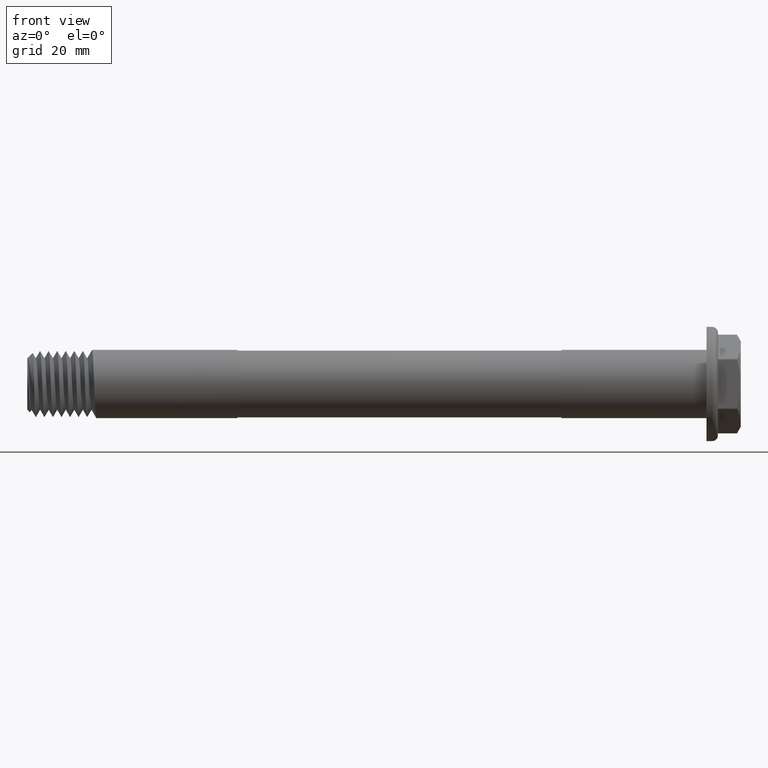
[diagram: clean part render]
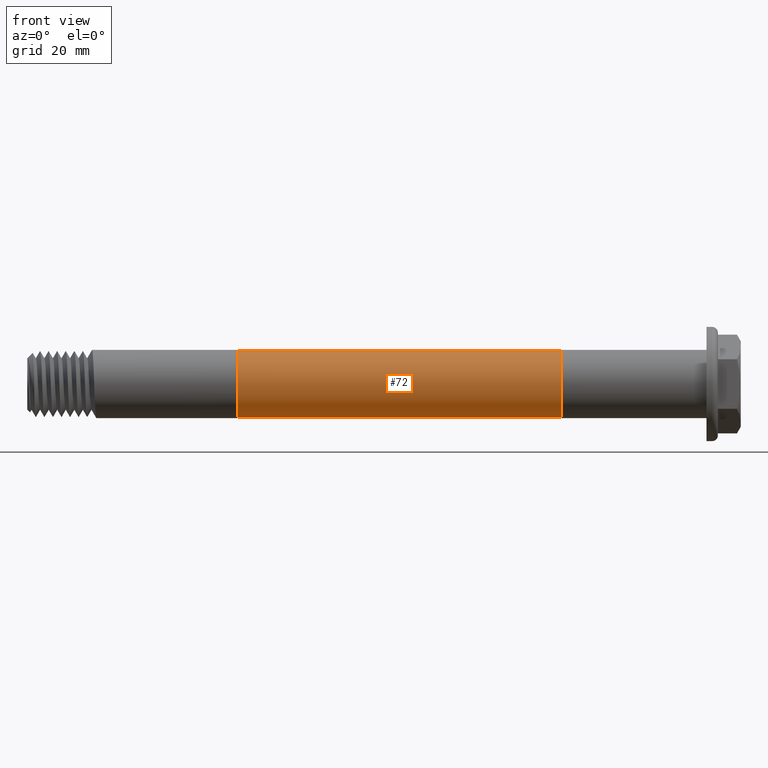
[diagram: same view with one face highlighted and labeled with its STEP entity id]
A machine part, front view. The second image highlights one B-rep face of the part: STEP entity #72.
In plain terms, the highlighted cylindrical surface (edge-blend (fillet) strip) has radius 5.842 mm, axis along (1, 0, 0).
Its self-contained STEP definition (entity closure, byte-faithful):
#72 = ADVANCED_FACE ( 'NONE', ( #163 ), #628, .T. ) ;
#75 = VECTOR ( 'NONE', #2176, 1000.000000000000000 ) ;
#160 = ORIENTED_EDGE ( 'NONE', *, *, #2307, .T. ) ;
#163 = FACE_OUTER_BOUND ( 'NONE', #357, .T. ) ;
#205 = CARTESIAN_POINT ( 'NONE',  ( -5.540562748477140300, 7.154386600618837600E-016, 5.841999999999999600 ) ) ;
#213 = DIRECTION ( 'NONE',  ( 0.0000000000000000000, 0.0000000000000000000, 1.000000000000000000 ) ) ;
#216 = ORIENTED_EDGE ( 'NONE', *, *, #500, .T. ) ;
#357 = EDGE_LOOP ( 'NONE', ( #782, #216, #939, #160 ) ) ;
#358 = DIRECTION ( 'NONE',  ( -1.000000000000000000, 0.0000000000000000000, 0.0000000000000000000 ) ) ;
#370 = CARTESIAN_POINT ( 'NONE',  ( 93.59999999999999400, 0.0000000000000000000, 0.0000000000000000000 ) ) ;
#500 = EDGE_CURVE ( 'NONE', #2080, #544, #1441, .T. ) ;
#544 = VERTEX_POINT ( 'NONE', #2092 ) ;
#554 = CARTESIAN_POINT ( 'NONE',  ( 36.82999999999999800, 7.154386600618837600E-016, 5.841999999999999600 ) ) ;
#628 = CYLINDRICAL_SURFACE ( 'NONE', #1150, 5.841999999999999600 ) ;
#629 = VERTEX_POINT ( 'NONE', #829 ) ;
#782 = ORIENTED_EDGE ( 'NONE', *, *, #1458, .F. ) ;
#816 = VERTEX_POINT ( 'NONE', #1553 ) ;
#829 = CARTESIAN_POINT ( 'NONE',  ( 93.59999999999999400, 0.0000000000000000000, -5.841999999999999600 ) ) ;
#873 = CARTESIAN_POINT ( 'NONE',  ( -5.540562748477140300, 0.0000000000000000000, 0.0000000000000000000 ) ) ;
#896 = EDGE_CURVE ( 'NONE', #544, #629, #1243, .T. ) ;
#939 = ORIENTED_EDGE ( 'NONE', *, *, #896, .T. ) ;
#1150 = AXIS2_PLACEMENT_3D ( 'NONE', #873, #1431, #1799 ) ;
#1155 = DIRECTION ( 'NONE',  ( 1.000000000000000000, 0.0000000000000000000, 0.0000000000000000000 ) ) ;
#1243 = LINE ( 'NONE', #1688, #1245 ) ;
#1244 = DIRECTION ( 'NONE',  ( 0.0000000000000000000, 0.0000000000000000000, -1.000000000000000000 ) ) ;
#1245 = VECTOR ( 'NONE', #1714, 1000.000000000000000 ) ;
#1431 = DIRECTION ( 'NONE',  ( 1.000000000000000000, 0.0000000000000000000, 0.0000000000000000000 ) ) ;
#1441 = CIRCLE ( 'NONE', #1816, 5.841999999999999600 ) ;
#1458 = EDGE_CURVE ( 'NONE', #2080, #816, #2309, .T. ) ;
#1553 = CARTESIAN_POINT ( 'NONE',  ( 93.59999999999999400, 7.154386600618837600E-016, 5.841999999999999600 ) ) ;
#1688 = CARTESIAN_POINT ( 'NONE',  ( -5.540562748477140300, 0.0000000000000000000, -5.841999999999999600 ) ) ;
#1714 = DIRECTION ( 'NONE',  ( 1.000000000000000000, 0.0000000000000000000, 0.0000000000000000000 ) ) ;
#1799 = DIRECTION ( 'NONE',  ( 0.0000000000000000000, 0.0000000000000000000, -1.000000000000000000 ) ) ;
#1816 = AXIS2_PLACEMENT_3D ( 'NONE', #2329, #1155, #1244 ) ;
#2080 = VERTEX_POINT ( 'NONE', #554 ) ;
#2081 = AXIS2_PLACEMENT_3D ( 'NONE', #370, #358, #213 ) ;
#2092 = CARTESIAN_POINT ( 'NONE',  ( 36.82999999999999800, 0.0000000000000000000, -5.841999999999999600 ) ) ;
#2176 = DIRECTION ( 'NONE',  ( 1.000000000000000000, 0.0000000000000000000, 0.0000000000000000000 ) ) ;
#2250 = CIRCLE ( 'NONE', #2081, 5.841999999999999600 ) ;
#2307 = EDGE_CURVE ( 'NONE', #629, #816, #2250, .T. ) ;
#2309 = LINE ( 'NONE', #205, #75 ) ;
#2329 = CARTESIAN_POINT ( 'NONE',  ( 36.82999999999999800, 0.0000000000000000000, 0.0000000000000000000 ) ) ;